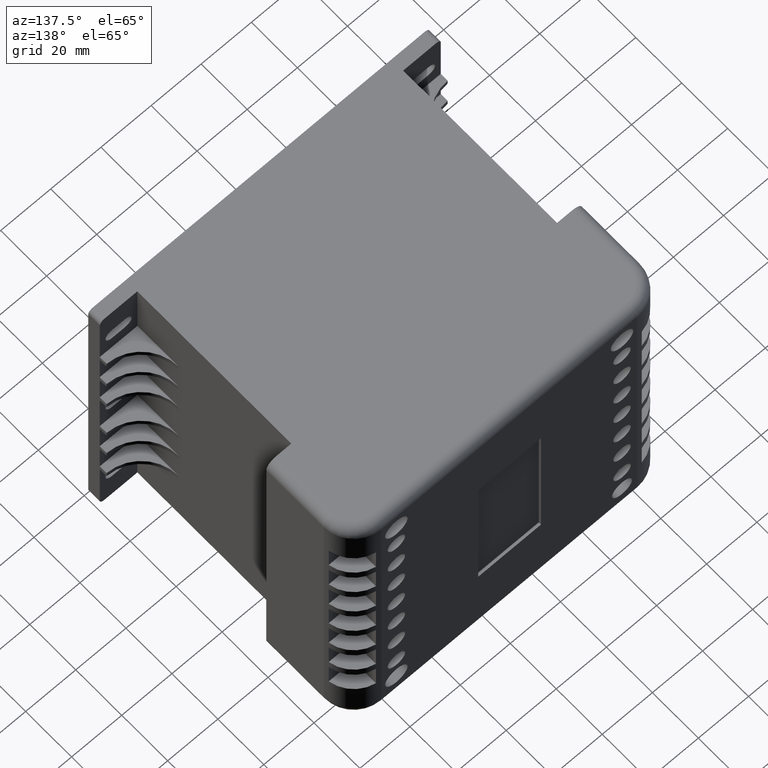
[diagram: clean part render]
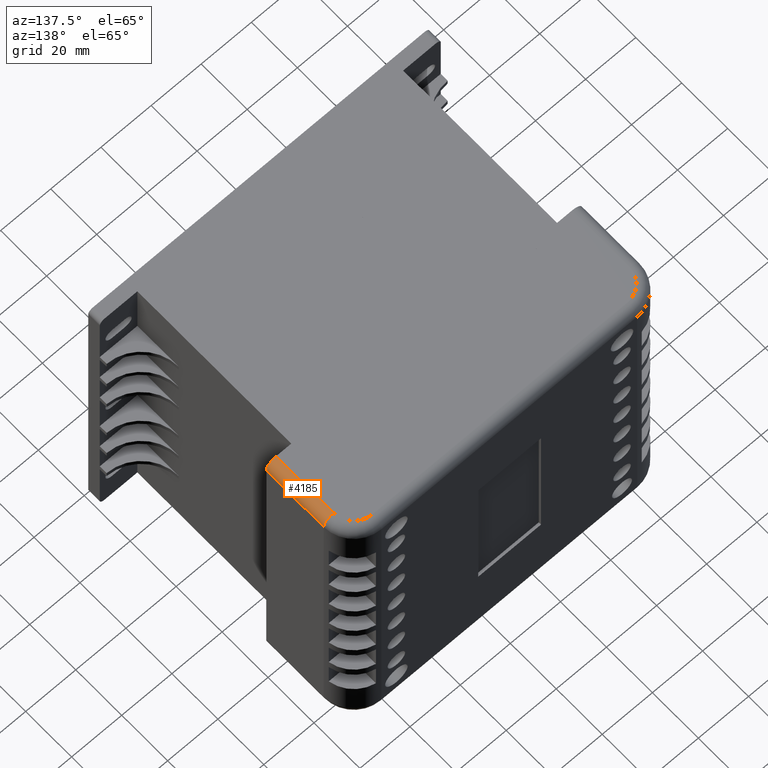
[diagram: same view with one face highlighted and labeled with its STEP entity id]
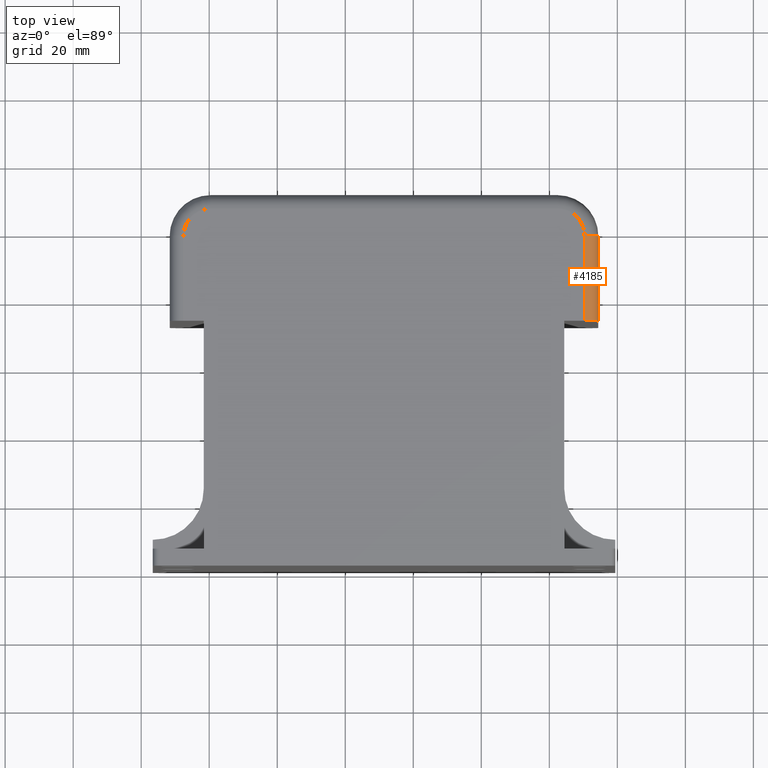
[diagram: same view with one face highlighted and labeled with its STEP entity id]
A machine part, auxiliary view. The second image highlights one B-rep face of the part: STEP entity #4185.
A second angle (top view) of the same face is appended — the face is thin or edge-on in the first view.
In plain terms, the highlighted cylindrical surface (edge-blend (fillet) strip) has radius 4 mm, axis along (0, 1, 0).
Its self-contained STEP definition (entity closure, byte-faithful):
#99=CYLINDRICAL_SURFACE('',#4648,4.);
#161=CIRCLE('',#4543,4.);
#211=CIRCLE('',#4645,4.00000000000007);
#472=FACE_OUTER_BOUND('',#731,.T.);
#731=EDGE_LOOP('',(#3254,#3255,#3256,#3257));
#1111=LINE('',#6747,#1503);
#1116=LINE('',#6772,#1508);
#1503=VECTOR('',#5598,10.);
#1508=VECTOR('',#5629,10.);
#1816=VERTEX_POINT('',#6560);
#1817=VERTEX_POINT('',#6562);
#1870=VERTEX_POINT('',#6745);
#1877=VERTEX_POINT('',#6767);
#2268=EDGE_CURVE('',#1817,#1816,#161,.T.);
#2351=EDGE_CURVE('',#1816,#1870,#1111,.T.);
#2361=EDGE_CURVE('',#1877,#1870,#211,.T.);
#2364=EDGE_CURVE('',#1877,#1817,#1116,.T.);
#3254=ORIENTED_EDGE('',*,*,#2268,.T.);
#3255=ORIENTED_EDGE('',*,*,#2351,.T.);
#3256=ORIENTED_EDGE('',*,*,#2361,.F.);
#3257=ORIENTED_EDGE('',*,*,#2364,.T.);
#4185=ADVANCED_FACE('',(#472),#99,.T.);
#4543=AXIS2_PLACEMENT_3D('',#6563,#5374,#5375);
#4645=AXIS2_PLACEMENT_3D('',#6768,#5621,#5622);
#4648=AXIS2_PLACEMENT_3D('',#6771,#5627,#5628);
#5374=DIRECTION('center_axis',(0.,1.,0.));
#5375=DIRECTION('ref_axis',(0.707106781186546,0.,0.707106781186549));
#5598=DIRECTION('',(0.,1.,0.));
#5621=DIRECTION('center_axis',(0.,1.,0.));
#5622=DIRECTION('ref_axis',(-5.55111512312568E-16,0.,1.));
#5627=DIRECTION('center_axis',(0.,1.,0.));
#5628=DIRECTION('ref_axis',(0.707106781186546,0.,0.707106781186549));
#5629=DIRECTION('',(0.,-1.,0.));
#6560=CARTESIAN_POINT('',(4.16540474075753E-14,0.,122.));
#6562=CARTESIAN_POINT('',(-3.99999999999997,0.,126.));
#6563=CARTESIAN_POINT('Origin',(-3.99999999999996,0.,122.));
#6745=CARTESIAN_POINT('',(4.04754766871136E-14,25.,122.));
#6747=CARTESIAN_POINT('',(4.16333634234434E-14,0.,122.));
#6767=CARTESIAN_POINT('',(-3.99999999999996,25.,126.));
#6768=CARTESIAN_POINT('Origin',(-3.99999999999996,25.,122.));
#6771=CARTESIAN_POINT('Origin',(-3.99999999999996,0.,122.));
#6772=CARTESIAN_POINT('',(-3.99999999999996,0.,126.));